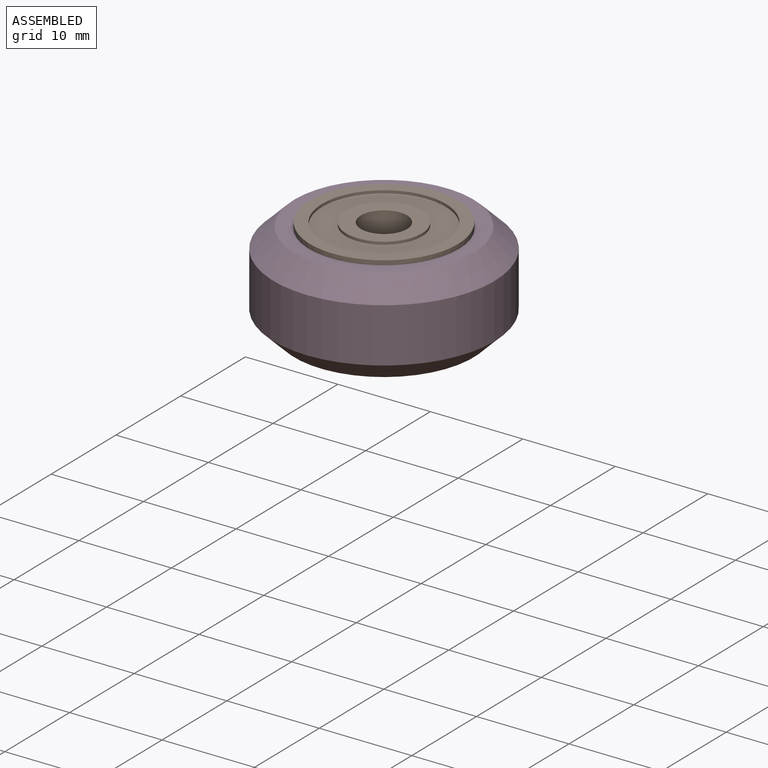
[diagram: assembled view]
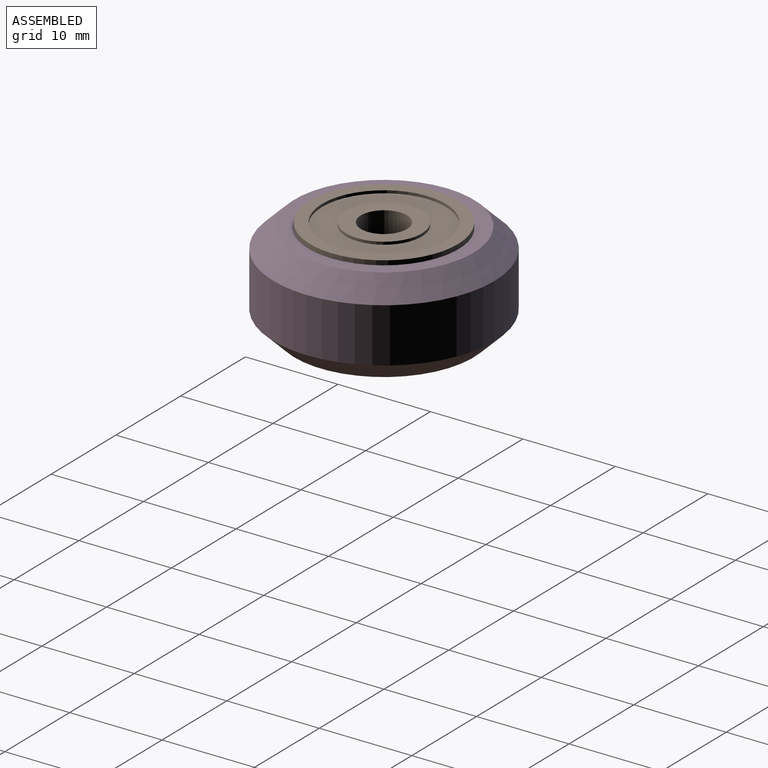
[diagram: assembled view, second angle]
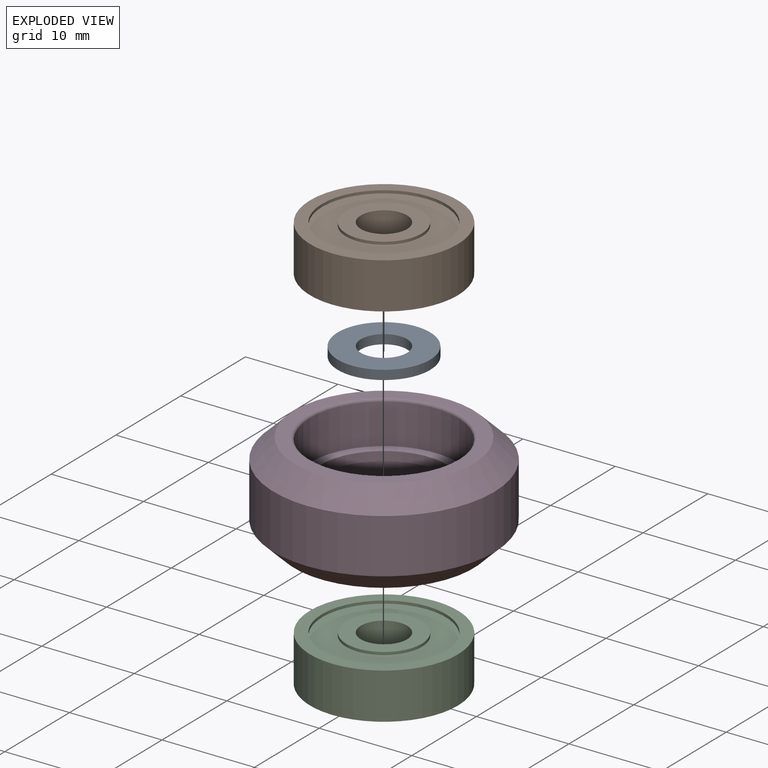
[diagram: exploded view]
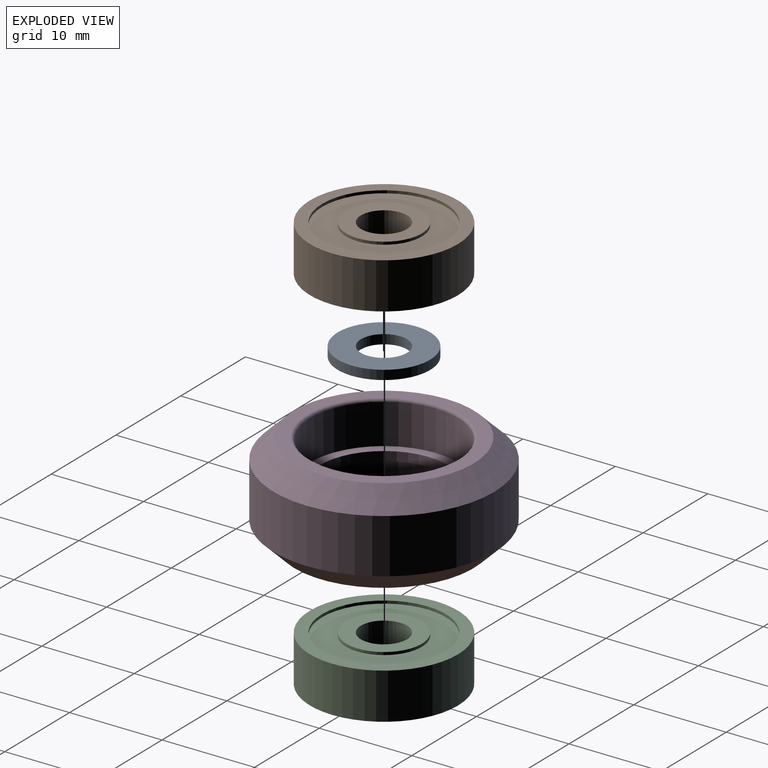
[diagram: exploded view, second angle]
ASSEMBLY  parts=4 mates=3
PART A: 4 faces, bbox 10x10x1 mm
  f0: cylinder r=2.5mm len=5mm, axis (0,0,1), area 15.7mm2, adj f2,f3
  f1: cylinder r=5mm len=10mm, axis (0,0,1), area 31.4mm2, adj f2,f3
  f2: plane 10x10mm, normal (0,0,-1), area 58.9mm2, adj f0,f1
  f3: plane 10x10mm, normal (0,0,1), area 58.9mm2, adj f0,f1
PART B: 12 faces, bbox 16x16x5 mm
  f0: cylinder r=8mm len=16mm, axis (0,0,1), area 251.3mm2, adj f1,f11
  f1: plane 16x16mm, normal (0,0,1), area 60mm2, adj f0,f2
  f2: cylinder r=6.7mm len=13.4mm, axis (0,0,1), area 12.6mm2, adj f1,f3
  f3: plane 13.4x13.4mm, normal (0,0,1), area 88.2mm2, adj f2,f4
  f4: cylinder r=4.1mm len=8.2mm, axis (0,0,1), area 7.7mm2, adj f3,f5
  f5: plane 8.2x8.2mm, normal (0,0,1), area 33.2mm2, adj f4,f6
  f6: cylinder r=2.5mm len=5mm, axis (0,0,1), area 78.5mm2, adj f5,f7
  f7: plane 8.2x8.2mm, normal (0,0,-1), area 33.2mm2, adj f6,f8
  f8: cylinder r=4.1mm len=8.2mm, axis (0,0,1), area 7.7mm2, adj f7,f9
  f9: plane 13.4x13.4mm, normal (0,0,-1), area 88.2mm2, adj f8,f10
  f10: cylinder r=6.7mm len=13.4mm, axis (0,0,1), area 12.6mm2, adj f9,f11
  f11: plane 16x16mm, normal (0,0,-1), area 60mm2, adj f0,f10
PART C: same geometry as B
PART D: 12 faces, bbox 23.9x23.9x10.2 mm
  f0: plane 19.4x19.4mm, normal (0,0,1), area 79.8mm2, adj f9,f10
  f1: cylinder r=7.99mm len=15.97mm, axis (0,0,1), area 216.5mm2, adj f2,f10
  f2: plane 15.97x15.97mm, normal (0,0,1), area 48.9mm2, adj f1,f3
  f3: cylinder r=6.94mm len=13.89mm, axis (0,0,1), area 43.6mm2, adj f2,f4
  f4: plane 15.97x15.97mm, normal (0,0,-1), area 48.9mm2, adj f3,f5
  f5: cylinder r=7.99mm len=15.97mm, axis (0,0,1), area 216.5mm2, adj f4,f11
  f6: plane 19.4x19.4mm, normal (0,0,-1), area 79.8mm2, adj f7,f11
  f7: cone r=9.7mm half-angle=46deg, axis (0,0,1), area 212.3mm2, adj f6,f8
  f8: cylinder r=11.95mm len=23.89mm, axis (0,0,1), area 442.1mm2, adj f7,f9
  f9: cone r=11.95mm half-angle=46deg, axis (0,0,-1), area 212.3mm2, adj f0,f8
  f10: torus R=8.29mm, axis (0,0,1), area 24mm2, adj f0,f1
  f11: torus R=8.29mm, axis (0,0,-1), area 24mm2, adj f5,f6
PLACE A t=(0,0,-0.5)mm
PLACE B t=(0,0,-0.5)mm
PLACE C t=(0,0,-6.5)mm
PLACE D t=(0,0,-0.5)mm fixed
MATE fastened B.f0 <-> A.f0  axis (0,0,-1) through (0,0,0)mm
MATE fastened A.f0 <-> C.f0  axis (0,0,-1) through (0,0,-1)mm
MATE fastened C.f0 <-> D.f1  axis (0,0,1) through (0,0,-1)mm
